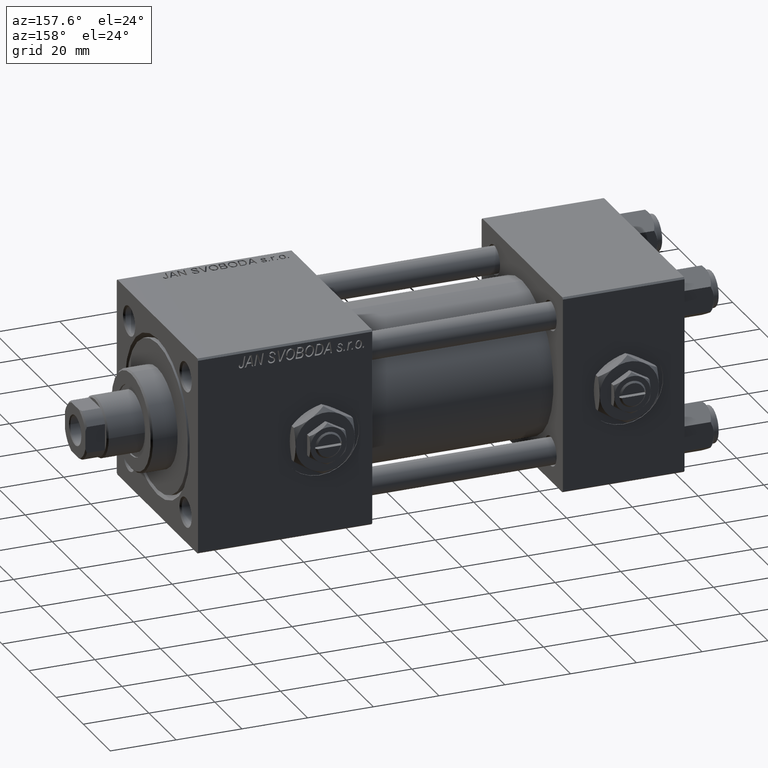
[diagram: clean part render]
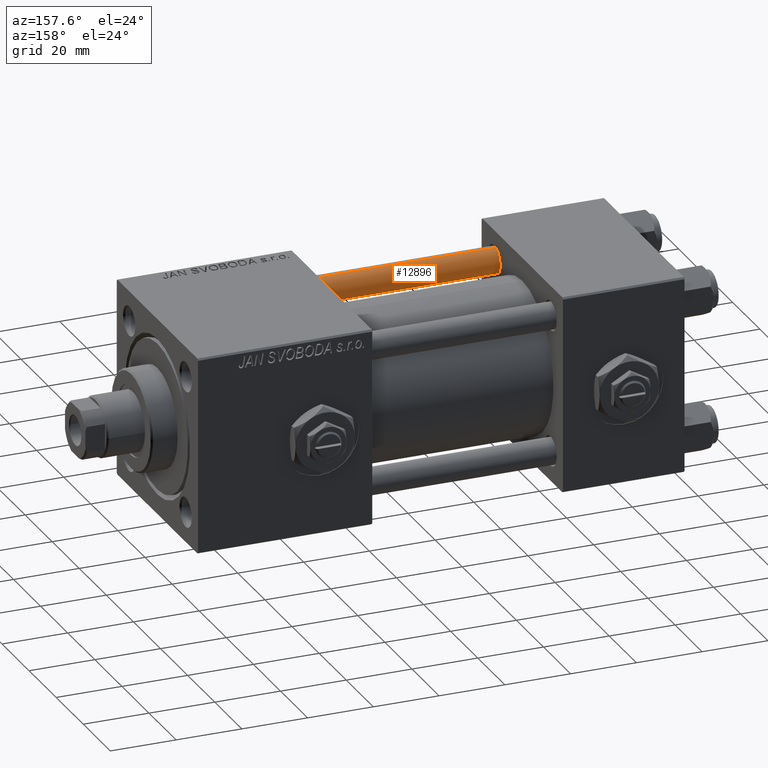
[diagram: same view with one face highlighted and labeled with its STEP entity id]
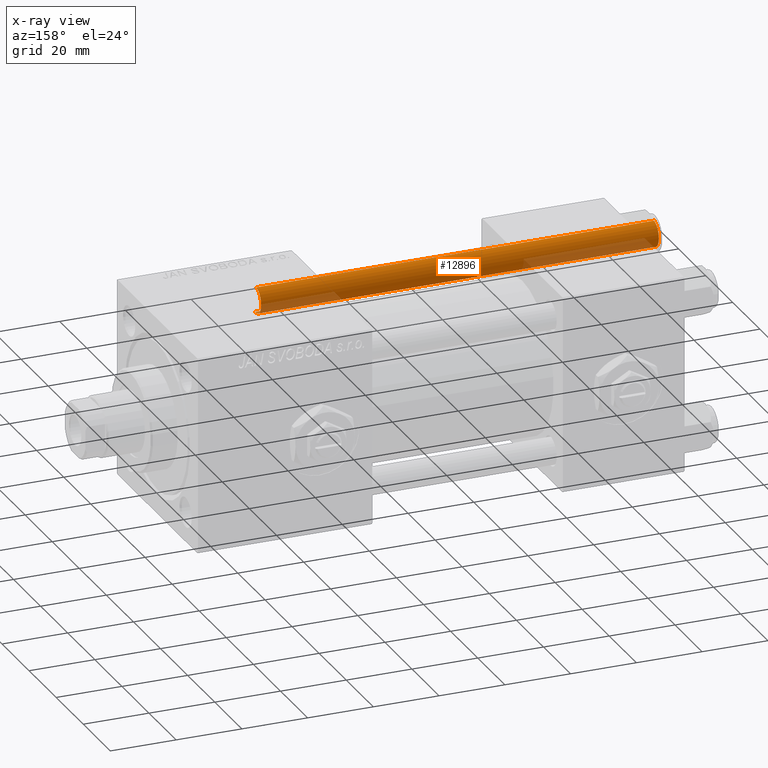
[diagram: x-ray of the same camera — body ghosted, the highlighted face saturated]
A machine part, auxiliary view. The second image highlights one B-rep face of the part: STEP entity #12896.
The next image is the same camera in x-ray: the body ghosted, the highlighted face saturated — about 19% of this face is hidden behind the body in this view.
In plain terms, the highlighted cylindrical surface (edge-blend (fillet) strip) has radius 4 mm, axis along (1, 0, -0).
Its self-contained STEP definition (entity closure, byte-faithful):
#1400 = DIRECTION ( 'NONE',  ( 1.000000000000000000, 0.000000000000000000, 0.000000000000000000 ) ) ;
#2779 = CARTESIAN_POINT ( 'NONE',  ( 4.000000000000000000, 4.898587196589411843E-16, 122.0000000000000000 ) ) ;
#5587 = CYLINDRICAL_SURFACE ( 'NONE', #18388, 4.000000000000000000 ) ;
#6480 = LINE ( 'NONE', #2779, #24107 ) ;
#6580 = EDGE_CURVE ( 'NONE', #14633, #15520, #6480, .T. ) ;
#9143 = EDGE_LOOP ( 'NONE', ( #26967, #15746, #30213, #23766 ) ) ;
#12896 = ADVANCED_FACE ( 'NONE', ( #41823 ), #5587, .T. ) ;
#13577 = CARTESIAN_POINT ( 'NONE',  ( 0.000000000000000000, 0.000000000000000000, 0.5000000000000559552 ) ) ;
#13832 = CARTESIAN_POINT ( 'NONE',  ( 4.000000000000000000, 4.898587196589411843E-16, 0.5000000000000559552 ) ) ;
#13871 = LINE ( 'NONE', #50341, #14226 ) ;
#14226 = VECTOR ( 'NONE', #18361, 1000.000000000000000 ) ;
#14633 = VERTEX_POINT ( 'NONE', #41020 ) ;
#15520 = VERTEX_POINT ( 'NONE', #13832 ) ;
#15746 = ORIENTED_EDGE ( 'NONE', *, *, #50093, .T. ) ;
#16496 = CARTESIAN_POINT ( 'NONE',  ( -4.000000000000000000, 0.000000000000000000, 121.5000000000000426 ) ) ;
#17529 = DIRECTION ( 'NONE',  ( 1.000000000000000000, 0.000000000000000000, 0.000000000000000000 ) ) ;
#18361 = DIRECTION ( 'NONE',  ( -0.000000000000000000, -0.000000000000000000, -1.000000000000000000 ) ) ;
#18388 = AXIS2_PLACEMENT_3D ( 'NONE', #45783, #37865, #38631 ) ;
#18568 = CIRCLE ( 'NONE', #30433, 4.000000000000000000 ) ;
#21752 = CARTESIAN_POINT ( 'NONE',  ( 0.000000000000000000, 0.000000000000000000, 121.5000000000000426 ) ) ;
#22789 = VERTEX_POINT ( 'NONE', #16496 ) ;
#23766 = ORIENTED_EDGE ( 'NONE', *, *, #29056, .T. ) ;
#24107 = VECTOR ( 'NONE', #33761, 1000.000000000000000 ) ;
#25076 = VERTEX_POINT ( 'NONE', #31468 ) ;
#26967 = ORIENTED_EDGE ( 'NONE', *, *, #6580, .F. ) ;
#29056 = EDGE_CURVE ( 'NONE', #25076, #15520, #31547, .T. ) ;
#30213 = ORIENTED_EDGE ( 'NONE', *, *, #42329, .T. ) ;
#30433 = AXIS2_PLACEMENT_3D ( 'NONE', #21752, #37628, #17529 ) ;
#31468 = CARTESIAN_POINT ( 'NONE',  ( -4.000000000000000000, 0.000000000000000000, 0.5000000000000559552 ) ) ;
#31547 = CIRCLE ( 'NONE', #38272, 4.000000000000000000 ) ;
#33761 = DIRECTION ( 'NONE',  ( -0.000000000000000000, -0.000000000000000000, -1.000000000000000000 ) ) ;
#37628 = DIRECTION ( 'NONE',  ( 0.000000000000000000, 0.000000000000000000, -1.000000000000000000 ) ) ;
#37865 = DIRECTION ( 'NONE',  ( -0.000000000000000000, -0.000000000000000000, -1.000000000000000000 ) ) ;
#38272 = AXIS2_PLACEMENT_3D ( 'NONE', #13577, #49524, #1400 ) ;
#38631 = DIRECTION ( 'NONE',  ( -1.000000000000000000, 0.000000000000000000, 0.000000000000000000 ) ) ;
#41020 = CARTESIAN_POINT ( 'NONE',  ( 4.000000000000000000, 4.898587196589411843E-16, 121.5000000000000426 ) ) ;
#41823 = FACE_OUTER_BOUND ( 'NONE', #9143, .T. ) ;
#42329 = EDGE_CURVE ( 'NONE', #22789, #25076, #13871, .T. ) ;
#45783 = CARTESIAN_POINT ( 'NONE',  ( 0.000000000000000000, 0.000000000000000000, 122.0000000000000000 ) ) ;
#49524 = DIRECTION ( 'NONE',  ( -0.000000000000000000, -0.000000000000000000, 1.000000000000000000 ) ) ;
#50093 = EDGE_CURVE ( 'NONE', #14633, #22789, #18568, .T. ) ;
#50341 = CARTESIAN_POINT ( 'NONE',  ( -4.000000000000000000, 0.000000000000000000, 122.0000000000000000 ) ) ;